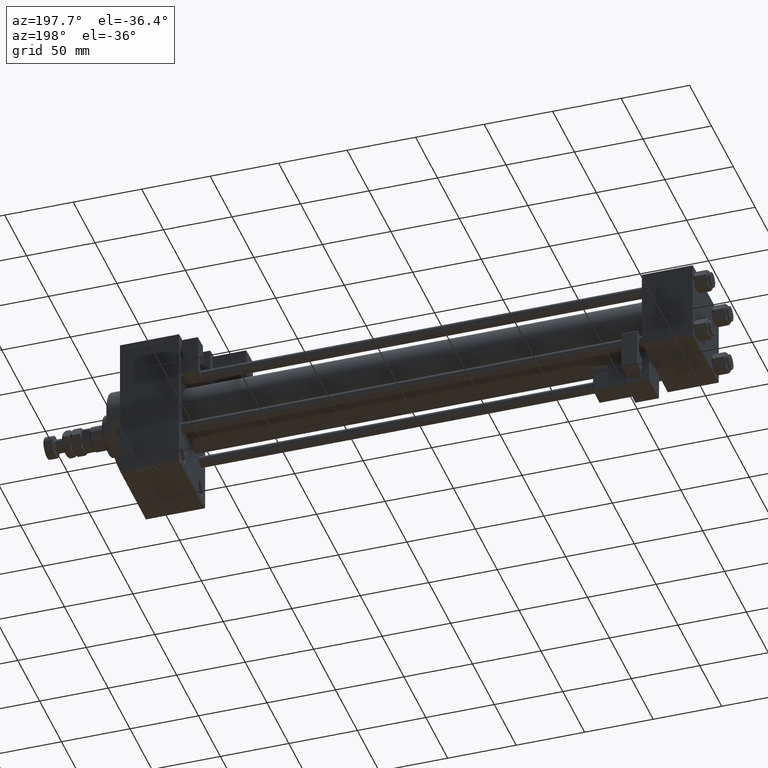
[diagram: clean part render]
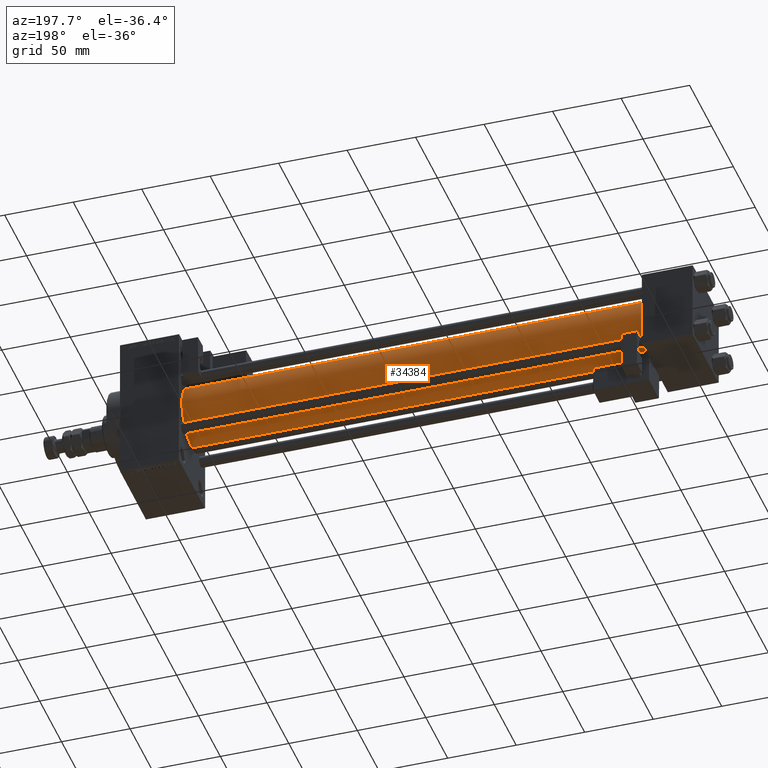
[diagram: same view with one face highlighted and labeled with its STEP entity id]
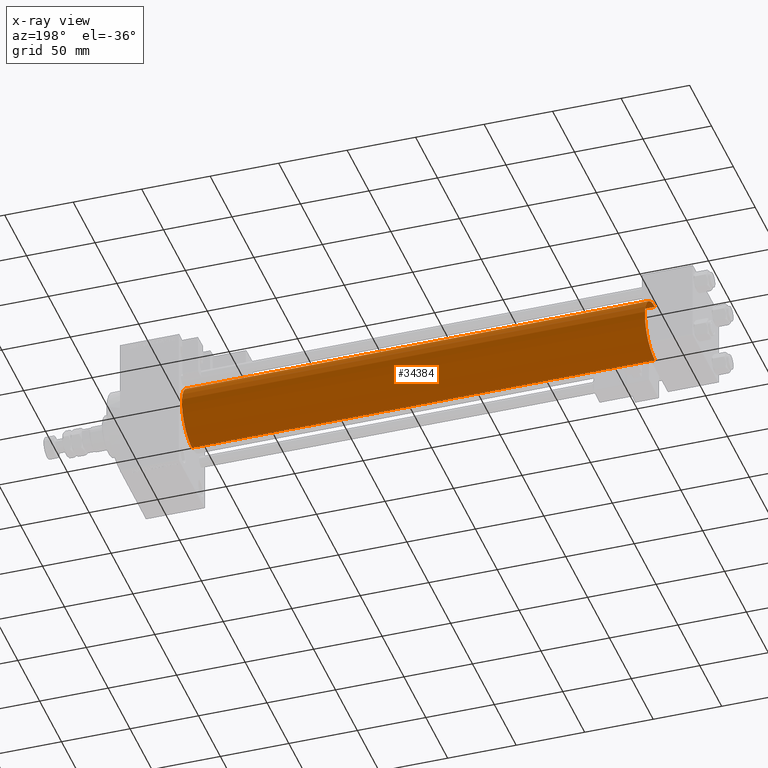
[diagram: x-ray of the same camera — body ghosted, the highlighted face saturated]
A machine part, auxiliary view. The second image highlights one B-rep face of the part: STEP entity #34384.
The next image is the same camera in x-ray: the body ghosted, the highlighted face saturated — about 0% of this face is hidden behind the body in this view.
In plain terms, the highlighted cylindrical surface (edge-blend (fillet) strip) has radius 23 mm, axis along (-1, -0, -0).
Its self-contained STEP definition (entity closure, byte-faithful):
#2275 = CIRCLE ( 'NONE', #8037, 23.00000000000000000 ) ;
#4013 = CARTESIAN_POINT ( 'NONE',  ( 375.0000000000000000, -2.602085213965210642E-15, 0.000000000000000000 ) ) ;
#4171 = VERTEX_POINT ( 'NONE', #7544 ) ;
#4505 = VECTOR ( 'NONE', #16376, 1000.000000000000000 ) ;
#4543 = CIRCLE ( 'NONE', #17834, 23.00000000000000000 ) ;
#4666 = CARTESIAN_POINT ( 'NONE',  ( 36.99999999999997868, -2.602085213965210642E-15, 0.000000000000000000 ) ) ;
#6201 = CARTESIAN_POINT ( 'NONE',  ( 375.0000000000000000, 2.146024240737016609E-16, -23.00000000000000000 ) ) ;
#7544 = CARTESIAN_POINT ( 'NONE',  ( 36.99999999999997868, 2.146024240737016609E-16, -23.00000000000000000 ) ) ;
#8037 = AXIS2_PLACEMENT_3D ( 'NONE', #4013, #50738, #8159 ) ;
#8159 = DIRECTION ( 'NONE',  ( 0.000000000000000000, 0.000000000000000000, -1.000000000000000000 ) ) ;
#8562 = DIRECTION ( 'NONE',  ( 0.000000000000000000, 0.000000000000000000, 1.000000000000000000 ) ) ;
#11827 = VECTOR ( 'NONE', #17096, 1000.000000000000000 ) ;
#12775 = ORIENTED_EDGE ( 'NONE', *, *, #21609, .F. ) ;
#16376 = DIRECTION ( 'NONE',  ( -1.000000000000000000, -0.000000000000000000, -0.000000000000000000 ) ) ;
#16635 = VERTEX_POINT ( 'NONE', #47650 ) ;
#17096 = DIRECTION ( 'NONE',  ( -1.000000000000000000, -0.000000000000000000, -0.000000000000000000 ) ) ;
#17562 = EDGE_CURVE ( 'NONE', #18396, #4171, #17621, .T. ) ;
#17621 = LINE ( 'NONE', #6201, #11827 ) ;
#17834 = AXIS2_PLACEMENT_3D ( 'NONE', #4666, #40479, #8562 ) ;
#18396 = VERTEX_POINT ( 'NONE', #39263 ) ;
#18543 = ORIENTED_EDGE ( 'NONE', *, *, #23014, .T. ) ;
#21609 = EDGE_CURVE ( 'NONE', #16635, #37142, #23906, .T. ) ;
#21784 = DIRECTION ( 'NONE',  ( 0.000000000000000000, 0.000000000000000000, 1.000000000000000000 ) ) ;
#22071 = AXIS2_PLACEMENT_3D ( 'NONE', #22819, #33450, #21784 ) ;
#22819 = CARTESIAN_POINT ( 'NONE',  ( 375.0000000000000000, -2.602085213965210642E-15, 0.000000000000000000 ) ) ;
#23014 = EDGE_CURVE ( 'NONE', #4171, #37142, #4543, .T. ) ;
#23588 = CARTESIAN_POINT ( 'NONE',  ( 36.99999999999997868, -2.602085213965210642E-15, 23.00000000000000000 ) ) ;
#23906 = LINE ( 'NONE', #40499, #4505 ) ;
#27425 = ORIENTED_EDGE ( 'NONE', *, *, #17562, .T. ) ;
#27465 = EDGE_CURVE ( 'NONE', #18396, #16635, #2275, .T. ) ;
#29829 = CYLINDRICAL_SURFACE ( 'NONE', #22071, 23.00000000000000000 ) ;
#33450 = DIRECTION ( 'NONE',  ( -1.000000000000000000, -0.000000000000000000, -0.000000000000000000 ) ) ;
#34384 = ADVANCED_FACE ( 'NONE', ( #50050 ), #29829, .T. ) ;
#35109 = EDGE_LOOP ( 'NONE', ( #48475, #27425, #18543, #12775 ) ) ;
#37142 = VERTEX_POINT ( 'NONE', #23588 ) ;
#39263 = CARTESIAN_POINT ( 'NONE',  ( 375.0000000000000000, 2.146024240737016609E-16, -23.00000000000000000 ) ) ;
#40479 = DIRECTION ( 'NONE',  ( 1.000000000000000000, -0.000000000000000000, 0.000000000000000000 ) ) ;
#40499 = CARTESIAN_POINT ( 'NONE',  ( 375.0000000000000000, -2.602085213965210642E-15, 23.00000000000000000 ) ) ;
#47650 = CARTESIAN_POINT ( 'NONE',  ( 375.0000000000000000, -2.602085213965210642E-15, 23.00000000000000000 ) ) ;
#48475 = ORIENTED_EDGE ( 'NONE', *, *, #27465, .F. ) ;
#50050 = FACE_OUTER_BOUND ( 'NONE', #35109, .T. ) ;
#50738 = DIRECTION ( 'NONE',  ( 1.000000000000000000, 0.000000000000000000, 0.000000000000000000 ) ) ;